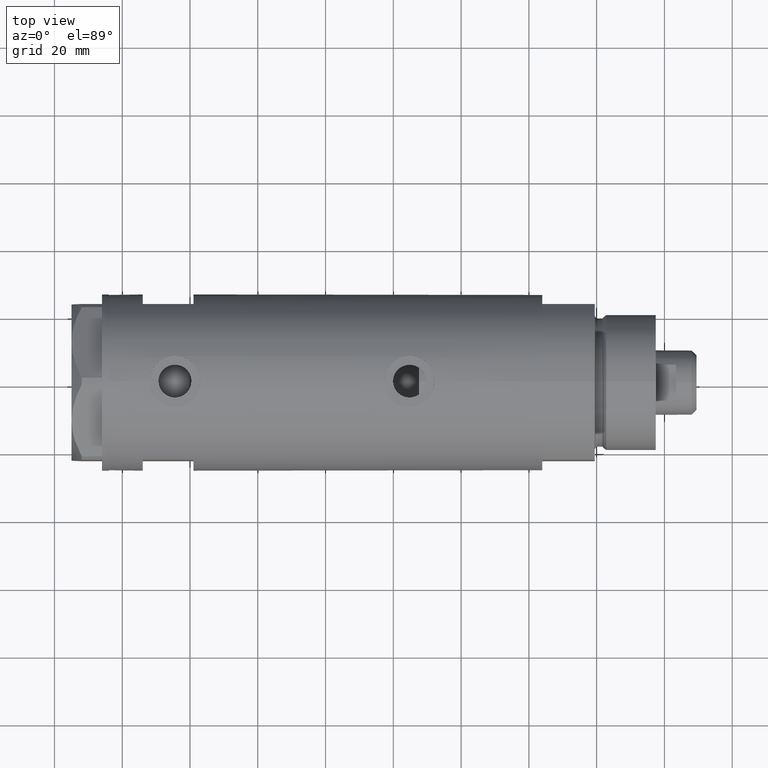
[diagram: clean part render]
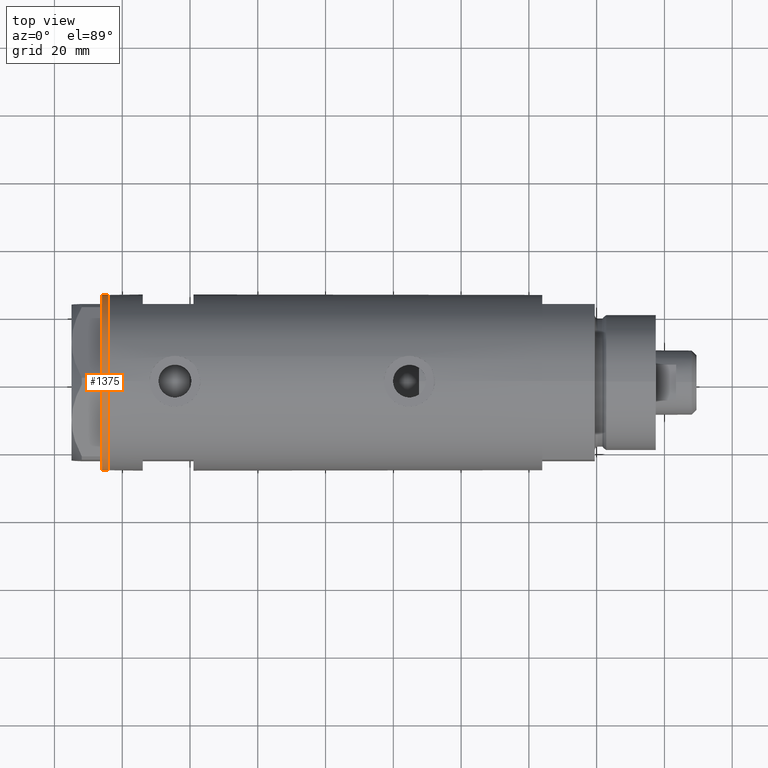
[diagram: same view with one face highlighted and labeled with its STEP entity id]
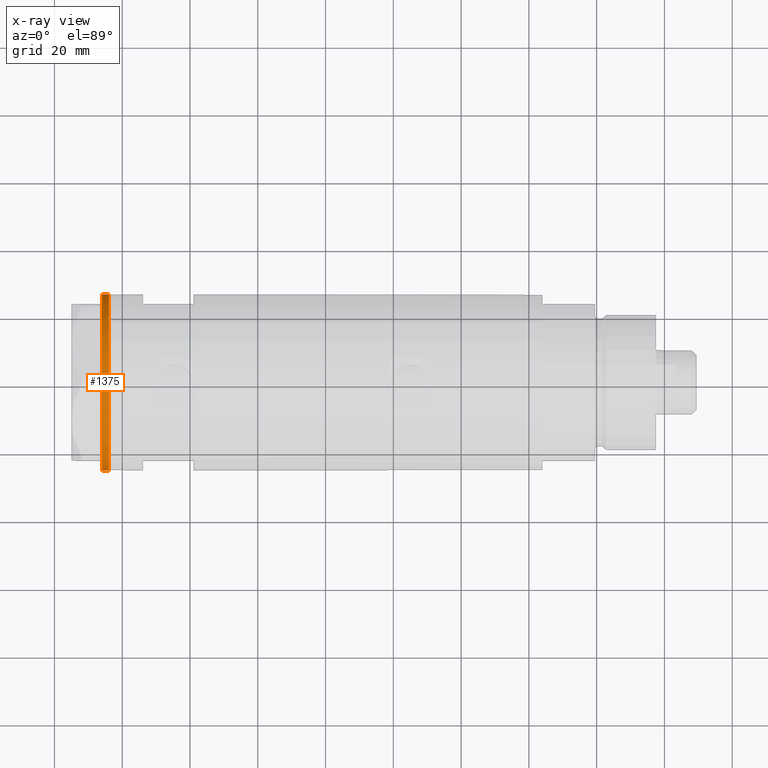
[diagram: x-ray of the same camera — body ghosted, the highlighted face saturated]
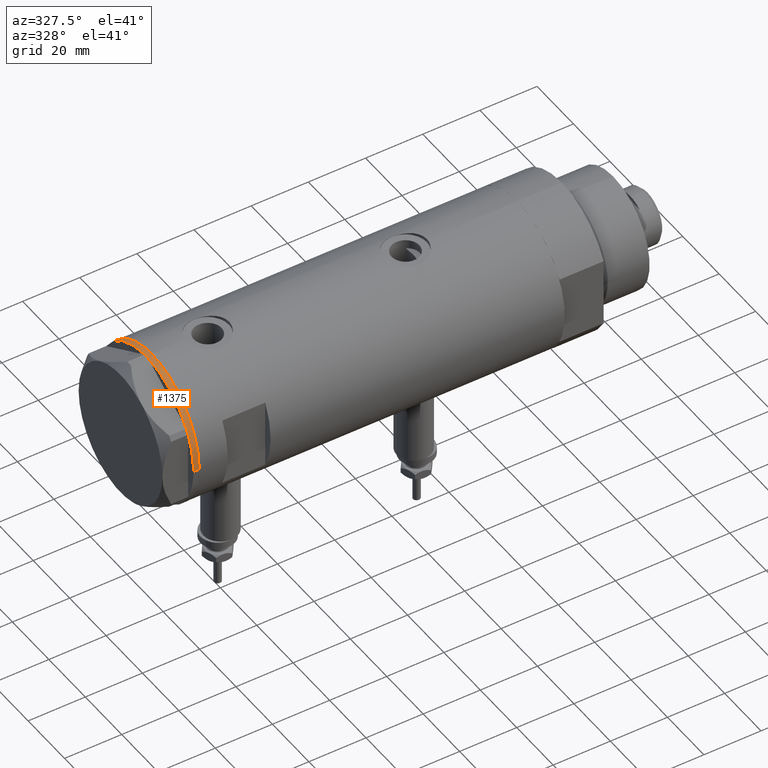
[diagram: same view with one face highlighted and labeled with its STEP entity id]
A machine part, top view. The second image highlights one B-rep face of the part: STEP entity #1375.
The next image is the same camera in x-ray: the body ghosted, the highlighted face saturated — about 0% of this face is hidden behind the body in this view.
A second angle (auxiliary view) of the same face is appended — the face is thin or edge-on in the first view.
In plain terms, the highlighted cylindrical surface (partial cylindrical patch) has radius 26 mm, axis along (-1, -0, 0).
Its self-contained STEP definition (entity closure, byte-faithful):
#39 = CARTESIAN_POINT ( 'NONE',  ( -22.46498481720448481, -13.09076325594801915, 0.000000000000000000 ) ) ;
#41 = CARTESIAN_POINT ( 'NONE',  ( 26.00000000000000355, 0.000000000000000000, 0.000000000000000000 ) ) ;
#48 = VERTEX_POINT ( 'NONE', #3091 ) ;
#56 = CARTESIAN_POINT ( 'NONE',  ( -22.35837924876856064, -13.27037593168466501, 0.000000000000000000 ) ) ;
#64 = EDGE_CURVE ( 'NONE', #301, #6026, #3976, .T. ) ;
#98 = DIRECTION ( 'NONE',  ( 0.000000000000000000, 0.000000000000000000, -1.000000000000000000 ) ) ;
#101 = AXIS2_PLACEMENT_3D ( 'NONE', #2128, #224, #3642 ) ;
#146 = DIRECTION ( 'NONE',  ( -1.000000000000000000, 0.000000000000000000, 0.000000000000000000 ) ) ;
#193 = CIRCLE ( 'NONE', #2629, 26.00000000000000355 ) ;
#224 = DIRECTION ( 'NONE',  ( 0.000000000000000000, 0.000000000000000000, -1.000000000000000000 ) ) ;
#301 = VERTEX_POINT ( 'NONE', #1360 ) ;
#340 = DIRECTION ( 'NONE',  ( 0.000000000000000000, 0.000000000000000000, -1.000000000000000000 ) ) ;
#366 = DIRECTION ( 'NONE',  ( 0.000000000000000000, 0.000000000000000000, -1.000000000000000000 ) ) ;
#449 = CARTESIAN_POINT ( 'NONE',  ( 22.35837924876884131, -13.27037593168418717, 0.000000000000000000 ) ) ;
#514 = CARTESIAN_POINT ( 'NONE',  ( -22.67167229899264669, -12.72773645103832507, 0.000000000000000000 ) ) ;
#645 = LINE ( 'NONE', #1180, #1015 ) ;
#675 = DIRECTION ( 'NONE',  ( 0.000000000000000000, 0.000000000000000000, -1.000000000000000000 ) ) ;
#709 = CARTESIAN_POINT ( 'NONE',  ( 0.000000000000000000, 0.000000000000000000, 0.000000000000000000 ) ) ;
#714 = CIRCLE ( 'NONE', #101, 26.00000000000000355 ) ;
#716 = CARTESIAN_POINT ( 'NONE',  ( 0.000000000000000000, 0.000000000000000000, 0.000000000000000000 ) ) ;
#741 = CARTESIAN_POINT ( 'NONE',  ( 0.000000000000000000, 0.000000000000000000, 0.000000000000000000 ) ) ;
#747 = EDGE_LOOP ( 'NONE', ( #4813, #1743, #2848, #5792, #6284, #4088, #1139, #2402, #4044, #3888, #3475, #3998, #1081, #4429, #1213, #2535 ) ) ;
#750 = EDGE_CURVE ( 'NONE', #838, #3963, #3565, .T. ) ;
#819 = CARTESIAN_POINT ( 'NONE',  ( -22.56942594318098116, -12.90986591935703665, 0.000000000000000000 ) ) ;
#838 = VERTEX_POINT ( 'NONE', #1965 ) ;
#842 = CARTESIAN_POINT ( 'NONE',  ( -0.3132930502238524539, -25.99811238272274139, 0.000000000000000000 ) ) ;
#881 = DIRECTION ( 'NONE',  ( -1.000000000000000000, 0.000000000000000000, 0.000000000000000000 ) ) ;
#915 = CARTESIAN_POINT ( 'NONE',  ( 0.000000000000000000, 0.000000000000000000, 0.000000000000000000 ) ) ;
#923 = VERTEX_POINT ( 'NONE', #56 ) ;
#936 = DIRECTION ( 'NONE',  ( -1.000000000000000000, 0.000000000000000000, 0.000000000000000000 ) ) ;
#1015 = VECTOR ( 'NONE', #3198, 1000.000000000000000 ) ;
#1081 = ORIENTED_EDGE ( 'NONE', *, *, #5786, .T. ) ;
#1106 = CYLINDRICAL_SURFACE ( 'NONE', #5400, 26.00000000000000355 ) ;
#1113 = CIRCLE ( 'NONE', #5191, 26.00000000000000355 ) ;
#1115 = EDGE_CURVE ( 'NONE', #6026, #4591, #714, .T. ) ;
#1139 = ORIENTED_EDGE ( 'NONE', *, *, #1115, .T. ) ;
#1163 = DIRECTION ( 'NONE',  ( 0.000000000000000000, 0.000000000000000000, -1.000000000000000000 ) ) ;
#1172 = CARTESIAN_POINT ( 'NONE',  ( 22.67167229899274616, -12.72773645103814211, 0.000000000000000000 ) ) ;
#1180 = CARTESIAN_POINT ( 'NONE',  ( 26.00000000000000355, 0.000000000000000000, -2.000000000000000000 ) ) ;
#1213 = ORIENTED_EDGE ( 'NONE', *, *, #2792, .T. ) ;
#1217 = VERTEX_POINT ( 'NONE', #5109 ) ;
#1360 = CARTESIAN_POINT ( 'NONE',  ( 22.67167229899274616, -12.72773645103814211, 0.000000000000000000 ) ) ;
#1375 = ADVANCED_FACE ( 'NONE', ( #5835 ), #1106, .T. ) ;
#1388 = VERTEX_POINT ( 'NONE', #4968 ) ;
#1412 = DIRECTION ( 'NONE',  ( -1.000000000000000000, 0.000000000000000000, 0.000000000000000000 ) ) ;
#1532 = AXIS2_PLACEMENT_3D ( 'NONE', #2217, #5768, #4724 ) ;
#1594 = VERTEX_POINT ( 'NONE', #2157 ) ;
#1614 = VECTOR ( 'NONE', #4529, 1000.000000000000000 ) ;
#1708 = EDGE_CURVE ( 'NONE', #923, #1594, #5251, .T. ) ;
#1720 = EDGE_CURVE ( 'NONE', #5048, #4976, #2653, .T. ) ;
#1723 = EDGE_CURVE ( 'NONE', #1217, #301, #193, .T. ) ;
#1743 = ORIENTED_EDGE ( 'NONE', *, *, #3274, .F. ) ;
#1802 = CARTESIAN_POINT ( 'NONE',  ( 0.1044411259767168837, -26.00062917530480888, 0.000000000000000000 ) ) ;
#1830 = CARTESIAN_POINT ( 'NONE',  ( 0.000000000000000000, 0.000000000000000000, 0.000000000000000000 ) ) ;
#1834 = EDGE_CURVE ( 'NONE', #4591, #1388, #2120, .T. ) ;
#1892 = CARTESIAN_POINT ( 'NONE',  ( 26.00000000000000355, 0.000000000000000000, -2.000000000000000000 ) ) ;
#1965 = CARTESIAN_POINT ( 'NONE',  ( -0.9999999999997406519, -25.98076211353317433, 0.000000000000000000 ) ) ;
#2027 = CARTESIAN_POINT ( 'NONE',  ( 22.46498481720470863, -13.09076325594764079, 0.000000000000000000 ) ) ;
#2080 = EDGE_CURVE ( 'NONE', #2989, #1217, #5501, .T. ) ;
#2092 = VERTEX_POINT ( 'NONE', #5603 ) ;
#2120 = CIRCLE ( 'NONE', #4679, 26.00000000000000355 ) ;
#2128 = CARTESIAN_POINT ( 'NONE',  ( 0.000000000000000000, 0.000000000000000000, 0.000000000000000000 ) ) ;
#2157 = CARTESIAN_POINT ( 'NONE',  ( -22.67167229899264669, -12.72773645103832507, 0.000000000000000000 ) ) ;
#2164 = EDGE_CURVE ( 'NONE', #2092, #3132, #4138, .T. ) ;
#2217 = CARTESIAN_POINT ( 'NONE',  ( 0.000000000000000000, 0.000000000000000000, 0.000000000000000000 ) ) ;
#2327 = CARTESIAN_POINT ( 'NONE',  ( 0.000000000000000000, 0.000000000000000000, -2.000000000000000000 ) ) ;
#2392 = AXIS2_PLACEMENT_3D ( 'NONE', #4832, #4353, #6304 ) ;
#2402 = ORIENTED_EDGE ( 'NONE', *, *, #1834, .T. ) ;
#2505 = EDGE_CURVE ( 'NONE', #4976, #838, #1113, .T. ) ;
#2533 = CARTESIAN_POINT ( 'NONE',  ( 0.000000000000000000, 0.000000000000000000, -2.000000000000000000 ) ) ;
#2535 = ORIENTED_EDGE ( 'NONE', *, *, #4807, .T. ) ;
#2617 = DIRECTION ( 'NONE',  ( -1.000000000000000000, 0.000000000000000000, 0.000000000000000000 ) ) ;
#2629 = AXIS2_PLACEMENT_3D ( 'NONE', #1830, #340, #881 ) ;
#2637 = CARTESIAN_POINT ( 'NONE',  ( 22.56942594318113748, -12.90986591935675065, 0.000000000000000000 ) ) ;
#2653 = B_SPLINE_CURVE_WITH_KNOTS ( 'NONE', 3,
 ( #3213, #1802, #4423, #6164 ),
 .UNSPECIFIED., .F., .F.,
 ( 4, 4 ),
 ( 0.000000000000000000, 1.000000000000000000 ),
 .UNSPECIFIED. ) ;
#2792 = EDGE_CURVE ( 'NONE', #1594, #48, #4945, .T. ) ;
#2848 = ORIENTED_EDGE ( 'NONE', *, *, #3651, .T. ) ;
#2968 = AXIS2_PLACEMENT_3D ( 'NONE', #741, #675, #4639 ) ;
#2989 = VERTEX_POINT ( 'NONE', #41 ) ;
#3091 = CARTESIAN_POINT ( 'NONE',  ( -22.99999999999990763, -12.12435565298232021, 0.000000000000000000 ) ) ;
#3105 = DIRECTION ( 'NONE',  ( 0.000000000000000000, 0.000000000000000000, -1.000000000000000000 ) ) ;
#3132 = VERTEX_POINT ( 'NONE', #5058 ) ;
#3198 = DIRECTION ( 'NONE',  ( -0.000000000000000000, -0.000000000000000000, 1.000000000000000000 ) ) ;
#3213 = CARTESIAN_POINT ( 'NONE',  ( 0.3132930502243174709, -25.99811238272273428, 0.000000000000000000 ) ) ;
#3274 = EDGE_CURVE ( 'NONE', #4375, #2092, #5816, .T. ) ;
#3475 = ORIENTED_EDGE ( 'NONE', *, *, #2505, .T. ) ;
#3565 = CIRCLE ( 'NONE', #6222, 26.00000000000000355 ) ;
#3642 = DIRECTION ( 'NONE',  ( -1.000000000000000000, 0.000000000000000000, 0.000000000000000000 ) ) ;
#3651 = EDGE_CURVE ( 'NONE', #4375, #2989, #645, .T. ) ;
#3794 = CARTESIAN_POINT ( 'NONE',  ( -22.35837924876856064, -13.27037593168466501, 0.000000000000000000 ) ) ;
#3877 = CARTESIAN_POINT ( 'NONE',  ( 0.000000000000000000, 0.000000000000000000, 0.000000000000000000 ) ) ;
#3888 = ORIENTED_EDGE ( 'NONE', *, *, #1720, .T. ) ;
#3902 = CARTESIAN_POINT ( 'NONE',  ( 0.3132930502243174709, -25.99811238272273428, 0.000000000000000000 ) ) ;
#3919 = DIRECTION ( 'NONE',  ( -0.000000000000000000, -0.000000000000000000, 1.000000000000000000 ) ) ;
#3939 = DIRECTION ( 'NONE',  ( 0.000000000000000000, 0.000000000000000000, -1.000000000000000000 ) ) ;
#3963 = VERTEX_POINT ( 'NONE', #5617 ) ;
#3976 = B_SPLINE_CURVE_WITH_KNOTS ( 'NONE', 3,
 ( #1172, #2637, #2027, #4595 ),
 .UNSPECIFIED., .F., .F.,
 ( 4, 4 ),
 ( 0.000000000000000000, 1.000000000000000000 ),
 .UNSPECIFIED. ) ;
#3998 = ORIENTED_EDGE ( 'NONE', *, *, #750, .T. ) ;
#4044 = ORIENTED_EDGE ( 'NONE', *, *, #4231, .T. ) ;
#4088 = ORIENTED_EDGE ( 'NONE', *, *, #64, .T. ) ;
#4138 = LINE ( 'NONE', #4554, #1614 ) ;
#4231 = EDGE_CURVE ( 'NONE', #1388, #5048, #4710, .T. ) ;
#4353 = DIRECTION ( 'NONE',  ( 0.000000000000000000, 0.000000000000000000, -1.000000000000000000 ) ) ;
#4375 = VERTEX_POINT ( 'NONE', #1892 ) ;
#4401 = DIRECTION ( 'NONE',  ( 1.000000000000000000, 0.000000000000000000, 0.000000000000000000 ) ) ;
#4423 = CARTESIAN_POINT ( 'NONE',  ( -0.1044411259762646482, -26.00062917530481243, 0.000000000000000000 ) ) ;
#4429 = ORIENTED_EDGE ( 'NONE', *, *, #1708, .T. ) ;
#4529 = DIRECTION ( 'NONE',  ( -0.000000000000000000, -0.000000000000000000, 1.000000000000000000 ) ) ;
#4554 = CARTESIAN_POINT ( 'NONE',  ( -26.00000000000000355, 3.184081677783118585E-15, -2.000000000000000000 ) ) ;
#4591 = VERTEX_POINT ( 'NONE', #5216 ) ;
#4595 = CARTESIAN_POINT ( 'NONE',  ( 22.35837924876884131, -13.27037593168418717, 0.000000000000000000 ) ) ;
#4604 = CIRCLE ( 'NONE', #5014, 26.00000000000000355 ) ;
#4639 = DIRECTION ( 'NONE',  ( -1.000000000000000000, 0.000000000000000000, 0.000000000000000000 ) ) ;
#4679 = AXIS2_PLACEMENT_3D ( 'NONE', #4748, #366, #6223 ) ;
#4710 = CIRCLE ( 'NONE', #1532, 26.00000000000000355 ) ;
#4724 = DIRECTION ( 'NONE',  ( -1.000000000000000000, 0.000000000000000000, 0.000000000000000000 ) ) ;
#4748 = CARTESIAN_POINT ( 'NONE',  ( 0.000000000000000000, 0.000000000000000000, 0.000000000000000000 ) ) ;
#4807 = EDGE_CURVE ( 'NONE', #48, #3132, #4913, .T. ) ;
#4813 = ORIENTED_EDGE ( 'NONE', *, *, #2164, .F. ) ;
#4832 = CARTESIAN_POINT ( 'NONE',  ( 0.000000000000000000, 0.000000000000000000, 0.000000000000000000 ) ) ;
#4913 = CIRCLE ( 'NONE', #2968, 26.00000000000000355 ) ;
#4924 = DIRECTION ( 'NONE',  ( -1.000000000000000000, 0.000000000000000000, 0.000000000000000000 ) ) ;
#4945 = CIRCLE ( 'NONE', #2392, 26.00000000000000355 ) ;
#4968 = CARTESIAN_POINT ( 'NONE',  ( 1.000000000000106803, -25.98076211353316367, 0.000000000000000000 ) ) ;
#4976 = VERTEX_POINT ( 'NONE', #842 ) ;
#5014 = AXIS2_PLACEMENT_3D ( 'NONE', #915, #3939, #1412 ) ;
#5048 = VERTEX_POINT ( 'NONE', #3902 ) ;
#5058 = CARTESIAN_POINT ( 'NONE',  ( -26.00000000000000355, 3.184081677783118585E-15, 0.000000000000000000 ) ) ;
#5109 = CARTESIAN_POINT ( 'NONE',  ( 23.00000000000007461, -12.12435565298200224, 0.000000000000000000 ) ) ;
#5191 = AXIS2_PLACEMENT_3D ( 'NONE', #709, #3105, #2617 ) ;
#5216 = CARTESIAN_POINT ( 'NONE',  ( 22.00000000000017053, -13.85640646055075464, 0.000000000000000000 ) ) ;
#5251 = B_SPLINE_CURVE_WITH_KNOTS ( 'NONE', 3,
 ( #3794, #39, #819, #514 ),
 .UNSPECIFIED., .F., .F.,
 ( 4, 4 ),
 ( 0.000000000000000000, 1.000000000000000000 ),
 .UNSPECIFIED. ) ;
#5291 = AXIS2_PLACEMENT_3D ( 'NONE', #716, #1163, #146 ) ;
#5400 = AXIS2_PLACEMENT_3D ( 'NONE', #2533, #3919, #4401 ) ;
#5402 = AXIS2_PLACEMENT_3D ( 'NONE', #2327, #6305, #936 ) ;
#5501 = CIRCLE ( 'NONE', #5291, 26.00000000000000355 ) ;
#5603 = CARTESIAN_POINT ( 'NONE',  ( -26.00000000000000355, 3.184081677783118585E-15, -2.000000000000000000 ) ) ;
#5617 = CARTESIAN_POINT ( 'NONE',  ( -21.99999999999998224, -13.85640646055105485, 0.000000000000000000 ) ) ;
#5768 = DIRECTION ( 'NONE',  ( 0.000000000000000000, 0.000000000000000000, -1.000000000000000000 ) ) ;
#5786 = EDGE_CURVE ( 'NONE', #3963, #923, #4604, .T. ) ;
#5792 = ORIENTED_EDGE ( 'NONE', *, *, #2080, .T. ) ;
#5816 = CIRCLE ( 'NONE', #5402, 26.00000000000000355 ) ;
#5835 = FACE_OUTER_BOUND ( 'NONE', #747, .T. ) ;
#6026 = VERTEX_POINT ( 'NONE', #449 ) ;
#6164 = CARTESIAN_POINT ( 'NONE',  ( -0.3132930502238524539, -25.99811238272274139, 0.000000000000000000 ) ) ;
#6222 = AXIS2_PLACEMENT_3D ( 'NONE', #3877, #98, #4924 ) ;
#6223 = DIRECTION ( 'NONE',  ( -1.000000000000000000, 0.000000000000000000, 0.000000000000000000 ) ) ;
#6284 = ORIENTED_EDGE ( 'NONE', *, *, #1723, .T. ) ;
#6304 = DIRECTION ( 'NONE',  ( -1.000000000000000000, 0.000000000000000000, 0.000000000000000000 ) ) ;
#6305 = DIRECTION ( 'NONE',  ( 0.000000000000000000, 0.000000000000000000, -1.000000000000000000 ) ) ;